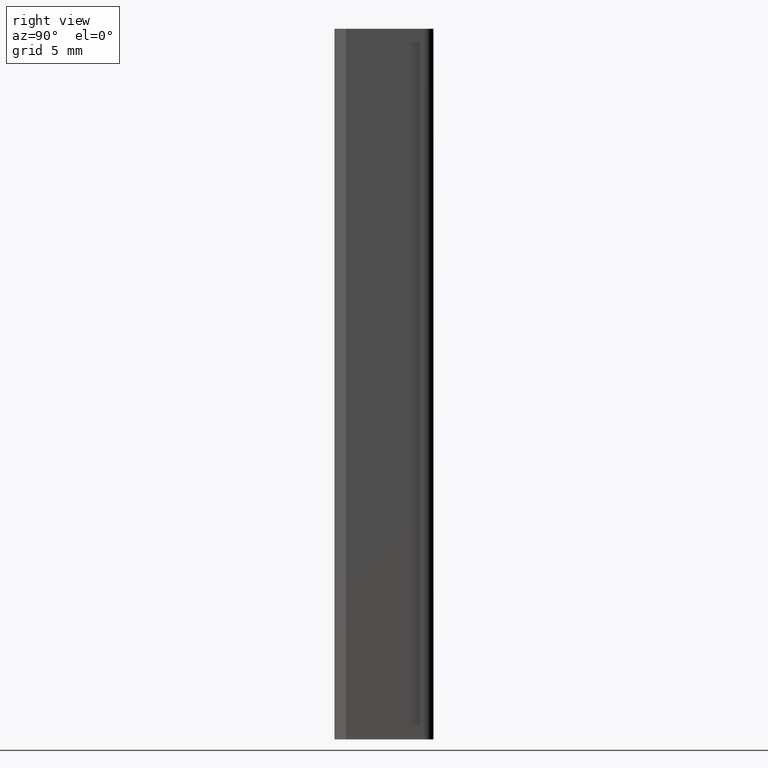
[diagram: clean part render]
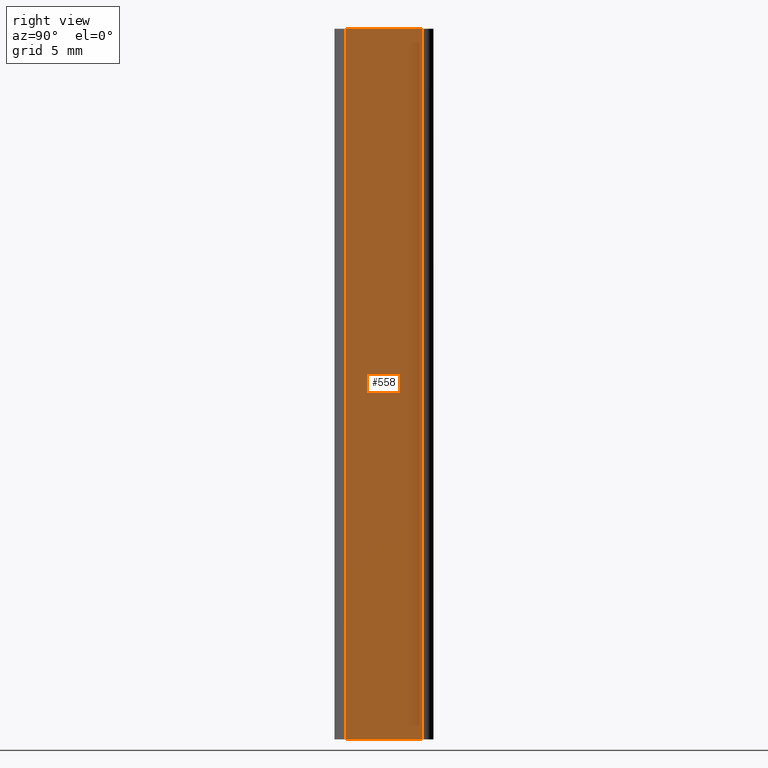
[diagram: same view with one face highlighted and labeled with its STEP entity id]
A machine part, right view. The second image highlights one B-rep face of the part: STEP entity #558.
In plain terms, the highlighted planar face has unit normal (-1, 0, 0).
Its self-contained STEP definition (entity closure, byte-faithful):
#22 = EDGE_CURVE ( 'NONE', #394, #390, #531, .T. ) ;
#46 = EDGE_CURVE ( 'NONE', #394, #393, #465, .T. ) ;
#50 = EDGE_CURVE ( 'NONE', #390, #391, #143, .T. ) ;
#83 = FACE_OUTER_BOUND ( 'NONE', #517, .T. ) ;
#116 = CARTESIAN_POINT ( 'NONE',  ( 8.000000000000000000, 0.0000000000000000000, 50.00000000000000000 ) ) ;
#117 = DIRECTION ( 'NONE',  ( 0.0000000000000000000, 1.000000000000000000, 0.0000000000000000000 ) ) ;
#128 = PLANE ( 'NONE',  #487 ) ;
#129 = CARTESIAN_POINT ( 'NONE',  ( 8.000000000000000000, 0.0000000000000000000, 50.00000000000000000 ) ) ;
#130 = DIRECTION ( 'NONE',  ( -1.000000000000000000, 0.0000000000000000000, 0.0000000000000000000 ) ) ;
#131 = DIRECTION ( 'NONE',  ( 0.0000000000000000000, 0.0000000000000000000, 1.000000000000000000 ) ) ;
#143 = LINE ( 'NONE', #116, #144 ) ;
#144 = VECTOR ( 'NONE', #117, 1000.000000000000000 ) ;
#156 = LINE ( 'NONE', #161, #157 ) ;
#157 = VECTOR ( 'NONE', #162, 1000.000000000000000 ) ;
#161 = CARTESIAN_POINT ( 'NONE',  ( 8.000000000000000000, 6.250000000000000000, 50.00000000000000000 ) ) ;
#162 = DIRECTION ( 'NONE',  ( -0.0000000000000000000, -0.0000000000000000000, -1.000000000000000000 ) ) ;
#202 = ORIENTED_EDGE ( 'NONE', *, *, #22, .F. ) ;
#203 = ORIENTED_EDGE ( 'NONE', *, *, #46, .T. ) ;
#238 = ORIENTED_EDGE ( 'NONE', *, *, #50, .F. ) ;
#239 = ORIENTED_EDGE ( 'NONE', *, *, #507, .F. ) ;
#356 = CARTESIAN_POINT ( 'NONE',  ( 8.000000000000000000, 0.0000000000000000000, 0.0000000000000000000 ) ) ;
#357 = DIRECTION ( 'NONE',  ( 0.0000000000000000000, 1.000000000000000000, 0.0000000000000000000 ) ) ;
#390 = VERTEX_POINT ( 'NONE', #453 ) ;
#391 = VERTEX_POINT ( 'NONE', #454 ) ;
#393 = VERTEX_POINT ( 'NONE', #456 ) ;
#394 = VERTEX_POINT ( 'NONE', #457 ) ;
#453 = CARTESIAN_POINT ( 'NONE',  ( 8.000000000000000000, 0.8348486100883192300, 50.00000000000000000 ) ) ;
#454 = CARTESIAN_POINT ( 'NONE',  ( 8.000000000000000000, 6.250000000000000000, 50.00000000000000000 ) ) ;
#456 = CARTESIAN_POINT ( 'NONE',  ( 8.000000000000000000, 6.250000000000000000, 0.0000000000000000000 ) ) ;
#457 = CARTESIAN_POINT ( 'NONE',  ( 8.000000000000000000, 0.8348486100883192300, 0.0000000000000000000 ) ) ;
#465 = LINE ( 'NONE', #356, #467 ) ;
#467 = VECTOR ( 'NONE', #357, 1000.000000000000000 ) ;
#487 = AXIS2_PLACEMENT_3D ( 'NONE', #129, #130, #131 ) ;
#507 = EDGE_CURVE ( 'NONE', #391, #393, #156, .T. ) ;
#517 = EDGE_LOOP ( 'NONE', ( #202, #203, #239, #238 ) ) ;
#531 = LINE ( 'NONE', #538, #533 ) ;
#533 = VECTOR ( 'NONE', #539, 1000.000000000000000 ) ;
#538 = CARTESIAN_POINT ( 'NONE',  ( 8.000000000000000000, 0.8348486100883192300, 0.0000000000000000000 ) ) ;
#539 = DIRECTION ( 'NONE',  ( -0.0000000000000000000, -0.0000000000000000000, 1.000000000000000000 ) ) ;
#558 = ADVANCED_FACE ( 'NONE', ( #83 ), #128, .F. ) ;